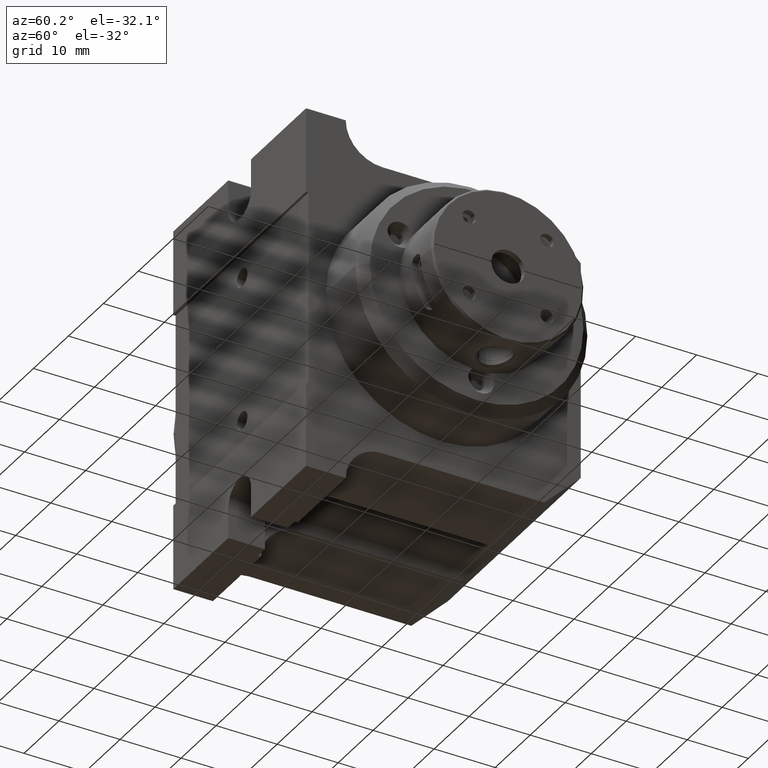
[diagram: clean part render]
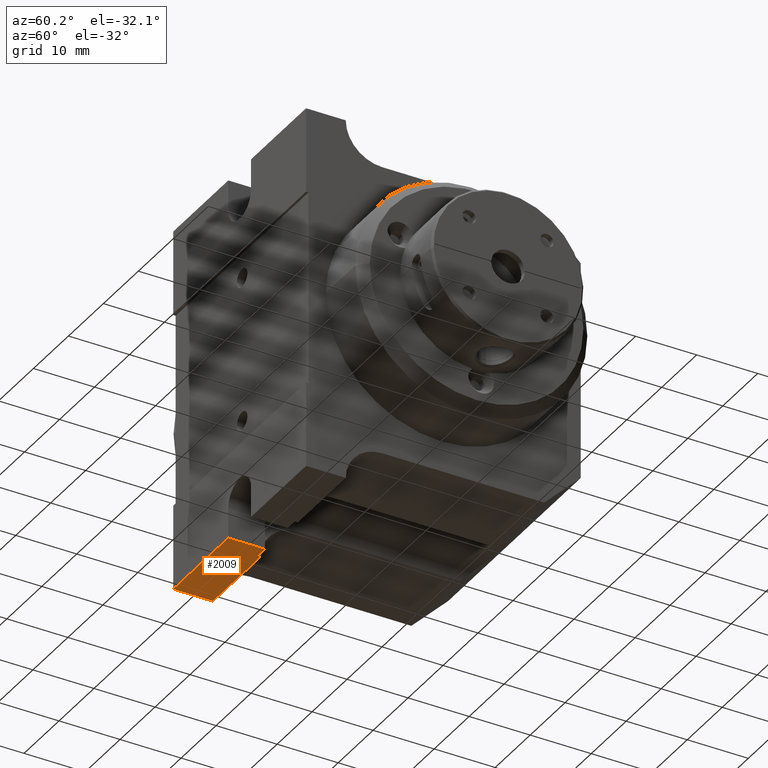
[diagram: same view with one face highlighted and labeled with its STEP entity id]
A machine part, auxiliary view. The second image highlights one B-rep face of the part: STEP entity #2009.
In plain terms, the highlighted planar face has unit normal (0, 0, -1).
Its self-contained STEP definition (entity closure, byte-faithful):
#263 = VECTOR ( 'NONE', #7345, 1000.000000000000000 ) ;
#386 = CARTESIAN_POINT ( 'NONE',  ( 20.25002206793000070, 3.810357237653000162, -26.47224762487999783 ) ) ;
#845 = EDGE_CURVE ( 'NONE', #4344, #6833, #4483, .T. ) ;
#939 = LINE ( 'NONE', #7731, #1042 ) ;
#1042 = VECTOR ( 'NONE', #2777, 1000.000000000000000 ) ;
#1273 = EDGE_CURVE ( 'NONE', #6833, #10820, #939, .T. ) ;
#1433 = EDGE_LOOP ( 'NONE', ( #12254, #8115, #10081, #4125, #7817, #10129 ) ) ;
#1549 = FACE_OUTER_BOUND ( 'NONE', #1433, .T. ) ;
#1983 = CARTESIAN_POINT ( 'NONE',  ( 6.500022067927000435, -2.189642762347000282, -26.47224762487999783 ) ) ;
#2009 = ADVANCED_FACE ( 'NONE', ( #1549 ), #5887, .T. ) ;
#2054 = CARTESIAN_POINT ( 'NONE',  ( 22.25002206793000070, -2.189642762347000282, -26.47224762487999783 ) ) ;
#2285 = VECTOR ( 'NONE', #4440, 1000.000000000000000 ) ;
#2468 = EDGE_CURVE ( 'NONE', #10820, #10283, #6294, .T. ) ;
#2777 = DIRECTION ( 'NONE',  ( 0.000000000000000000, -1.000000000000000000, 0.000000000000000000 ) ) ;
#2863 = CARTESIAN_POINT ( 'NONE',  ( 6.500022067927000435, 4.310357237652999274, -26.47224762487999783 ) ) ;
#2993 = LINE ( 'NONE', #8266, #11483 ) ;
#3411 = VERTEX_POINT ( 'NONE', #1983 ) ;
#4125 = ORIENTED_EDGE ( 'NONE', *, *, #845, .T. ) ;
#4322 = CARTESIAN_POINT ( 'NONE',  ( 20.25002206793000070, 3.810357237653000162, -26.47224762487999783 ) ) ;
#4344 = VERTEX_POINT ( 'NONE', #2863 ) ;
#4440 = DIRECTION ( 'NONE',  ( 1.000000000000000000, 0.000000000000000000, 0.000000000000000000 ) ) ;
#4483 = LINE ( 'NONE', #10577, #263 ) ;
#5887 = PLANE ( 'NONE',  #11812 ) ;
#6163 = CARTESIAN_POINT ( 'NONE',  ( 22.25002206793000070, 3.810357237653000162, -26.47224762487999783 ) ) ;
#6294 = LINE ( 'NONE', #386, #6376 ) ;
#6376 = VECTOR ( 'NONE', #7461, 1000.000000000000000 ) ;
#6655 = LINE ( 'NONE', #6732, #7006 ) ;
#6732 = CARTESIAN_POINT ( 'NONE',  ( 6.500022067927000435, -2.189642762347000282, -26.47224762487999783 ) ) ;
#6780 = EDGE_CURVE ( 'NONE', #3411, #4344, #6655, .T. ) ;
#6833 = VERTEX_POINT ( 'NONE', #9656 ) ;
#7006 = VECTOR ( 'NONE', #8739, 1000.000000000000000 ) ;
#7345 = DIRECTION ( 'NONE',  ( 1.000000000000000000, 0.000000000000000000, 0.000000000000000000 ) ) ;
#7461 = DIRECTION ( 'NONE',  ( 1.000000000000000000, 0.000000000000000000, 0.000000000000000000 ) ) ;
#7589 = EDGE_CURVE ( 'NONE', #10283, #12313, #2993, .T. ) ;
#7731 = CARTESIAN_POINT ( 'NONE',  ( 20.25002206793000070, 4.310357237652999274, -26.47224762487999783 ) ) ;
#7817 = ORIENTED_EDGE ( 'NONE', *, *, #1273, .T. ) ;
#8115 = ORIENTED_EDGE ( 'NONE', *, *, #11016, .F. ) ;
#8266 = CARTESIAN_POINT ( 'NONE',  ( 22.25002206793000070, 3.810357237653000162, -26.47224762487999783 ) ) ;
#8739 = DIRECTION ( 'NONE',  ( 0.000000000000000000, 1.000000000000000000, 0.000000000000000000 ) ) ;
#9320 = CARTESIAN_POINT ( 'NONE',  ( 6.500022067927000435, -2.189642762347000282, -26.47224762487999783 ) ) ;
#9656 = CARTESIAN_POINT ( 'NONE',  ( 20.25002206793000070, 4.310357237652999274, -26.47224762487999783 ) ) ;
#10081 = ORIENTED_EDGE ( 'NONE', *, *, #6780, .T. ) ;
#10129 = ORIENTED_EDGE ( 'NONE', *, *, #2468, .T. ) ;
#10283 = VERTEX_POINT ( 'NONE', #6163 ) ;
#10577 = CARTESIAN_POINT ( 'NONE',  ( 6.500022067927000435, 4.310357237652999274, -26.47224762487999783 ) ) ;
#10603 = DIRECTION ( 'NONE',  ( 0.000000000000000000, -1.000000000000000000, 0.000000000000000000 ) ) ;
#10682 = LINE ( 'NONE', #9320, #2285 ) ;
#10820 = VERTEX_POINT ( 'NONE', #4322 ) ;
#10856 = CARTESIAN_POINT ( 'NONE',  ( 6.500022067927000435, -2.189642762347000282, -26.47224762487999783 ) ) ;
#11016 = EDGE_CURVE ( 'NONE', #3411, #12313, #10682, .T. ) ;
#11332 = DIRECTION ( 'NONE',  ( 0.000000000000000000, -1.000000000000000000, 0.000000000000000000 ) ) ;
#11483 = VECTOR ( 'NONE', #11332, 1000.000000000000000 ) ;
#11812 = AXIS2_PLACEMENT_3D ( 'NONE', #10856, #12669, #10603 ) ;
#12254 = ORIENTED_EDGE ( 'NONE', *, *, #7589, .T. ) ;
#12313 = VERTEX_POINT ( 'NONE', #2054 ) ;
#12669 = DIRECTION ( 'NONE',  ( 0.000000000000000000, 0.000000000000000000, -1.000000000000000000 ) ) ;